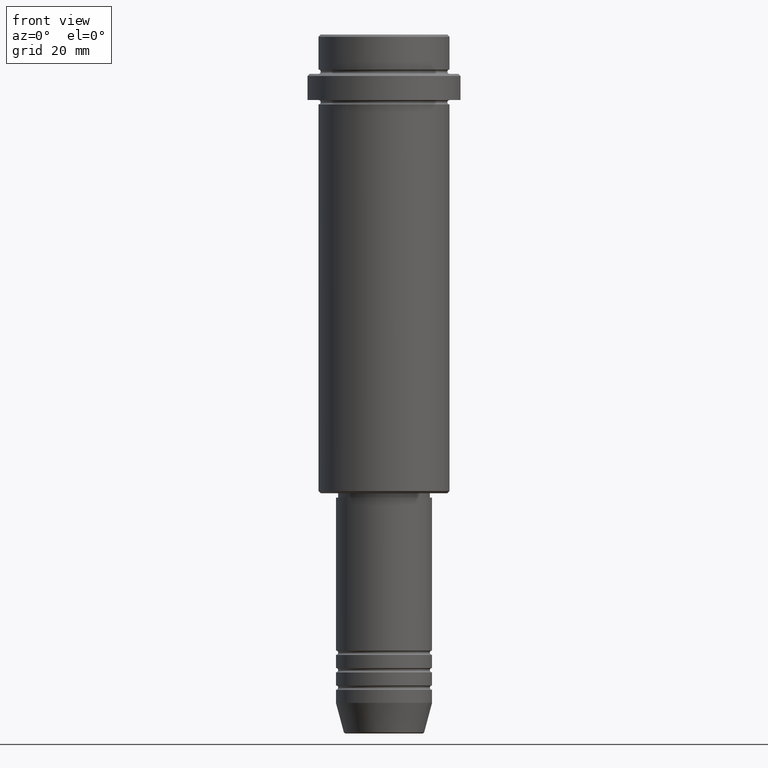
[diagram: clean part render]
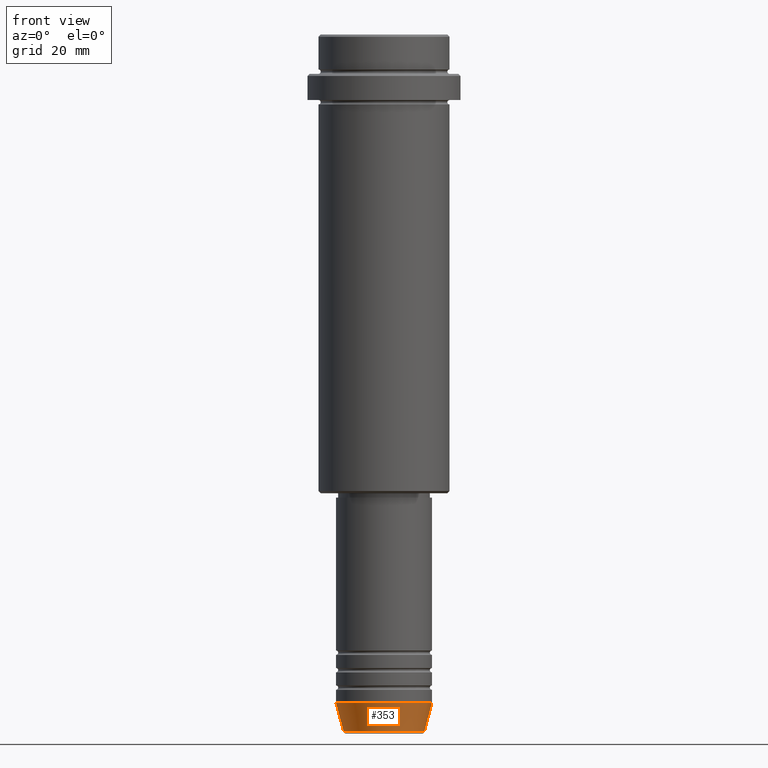
[diagram: same view with one face highlighted and labeled with its STEP entity id]
A machine part, front view. The second image highlights one B-rep face of the part: STEP entity #353.
In plain terms, the highlighted conical surface has half-angle 15 deg.
Its self-contained STEP definition (entity closure, byte-faithful):
#37 = LINE ( 'NONE', #134, #53 ) ;
#53 = VECTOR ( 'NONE', #1245, 1000.000000000000000 ) ;
#112 = EDGE_CURVE ( 'NONE', #1105, #292, #860, .T. ) ;
#134 = CARTESIAN_POINT ( 'NONE',  ( 11.00000000000000000, 0.000000000000000000, -153.0000000000000000 ) ) ;
#140 = CIRCLE ( 'NONE', #959, 11.00000000000000000 ) ;
#201 = DIRECTION ( 'NONE',  ( -0.000000000000000000, -0.000000000000000000, 1.000000000000000000 ) ) ;
#215 = AXIS2_PLACEMENT_3D ( 'NONE', #588, #714, #1032 ) ;
#292 = VERTEX_POINT ( 'NONE', #388 ) ;
#353 = ADVANCED_FACE ( 'NONE', ( #690 ), #484, .T. ) ;
#376 = VERTEX_POINT ( 'NONE', #497 ) ;
#388 = CARTESIAN_POINT ( 'NONE',  ( -11.00000000000000000, 1.347111479062088405E-15, -153.0000000000000000 ) ) ;
#396 = CIRCLE ( 'NONE', #632, 9.223655072137189492 ) ;
#451 = EDGE_CURVE ( 'NONE', #376, #932, #37, .T. ) ;
#466 = CARTESIAN_POINT ( 'NONE',  ( 0.000000000000000000, 0.000000000000000000, -153.0000000000000000 ) ) ;
#473 = DIRECTION ( 'NONE',  ( -0.000000000000000000, -0.000000000000000000, 1.000000000000000000 ) ) ;
#484 = CONICAL_SURFACE ( 'NONE', #215, 11.00000000000000000, 0.2617993877991500740 ) ;
#497 = CARTESIAN_POINT ( 'NONE',  ( 9.223655072137189492, 0.000000000000000000, -159.6294095225512422 ) ) ;
#509 = CARTESIAN_POINT ( 'NONE',  ( -11.00000000000000000, 1.347111479062088405E-15, -153.0000000000000000 ) ) ;
#588 = CARTESIAN_POINT ( 'NONE',  ( 0.000000000000000000, 0.000000000000000000, -153.0000000000000000 ) ) ;
#600 = DIRECTION ( 'NONE',  ( 1.000000000000000000, 0.000000000000000000, 0.000000000000000000 ) ) ;
#632 = AXIS2_PLACEMENT_3D ( 'NONE', #1392, #201, #644 ) ;
#643 = CARTESIAN_POINT ( 'NONE',  ( -9.223655072137189492, 1.238341722557647202E-15, -159.6294095225512422 ) ) ;
#644 = DIRECTION ( 'NONE',  ( 1.000000000000000000, 0.000000000000000000, 0.000000000000000000 ) ) ;
#690 = FACE_OUTER_BOUND ( 'NONE', #1337, .T. ) ;
#714 = DIRECTION ( 'NONE',  ( -0.000000000000000000, -0.000000000000000000, 1.000000000000000000 ) ) ;
#740 = EDGE_CURVE ( 'NONE', #1105, #376, #396, .T. ) ;
#771 = EDGE_CURVE ( 'NONE', #292, #932, #140, .T. ) ;
#807 = VECTOR ( 'NONE', #1301, 1000.000000000000000 ) ;
#860 = LINE ( 'NONE', #509, #807 ) ;
#932 = VERTEX_POINT ( 'NONE', #1371 ) ;
#959 = AXIS2_PLACEMENT_3D ( 'NONE', #466, #473, #600 ) ;
#1032 = DIRECTION ( 'NONE',  ( 1.000000000000000000, 0.000000000000000000, 0.000000000000000000 ) ) ;
#1088 = ORIENTED_EDGE ( 'NONE', *, *, #771, .F. ) ;
#1105 = VERTEX_POINT ( 'NONE', #643 ) ;
#1198 = ORIENTED_EDGE ( 'NONE', *, *, #112, .F. ) ;
#1239 = ORIENTED_EDGE ( 'NONE', *, *, #740, .T. ) ;
#1245 = DIRECTION ( 'NONE',  ( 0.2588190451025213501, 0.000000000000000000, 0.9659258262890680902 ) ) ;
#1301 = DIRECTION ( 'NONE',  ( -0.2588190451025213501, 3.169619151431772337E-17, 0.9659258262890680902 ) ) ;
#1311 = ORIENTED_EDGE ( 'NONE', *, *, #451, .T. ) ;
#1337 = EDGE_LOOP ( 'NONE', ( #1198, #1239, #1311, #1088 ) ) ;
#1371 = CARTESIAN_POINT ( 'NONE',  ( 11.00000000000000000, 0.000000000000000000, -153.0000000000000000 ) ) ;
#1392 = CARTESIAN_POINT ( 'NONE',  ( 0.000000000000000000, 0.000000000000000000, -159.6294095225512422 ) ) ;